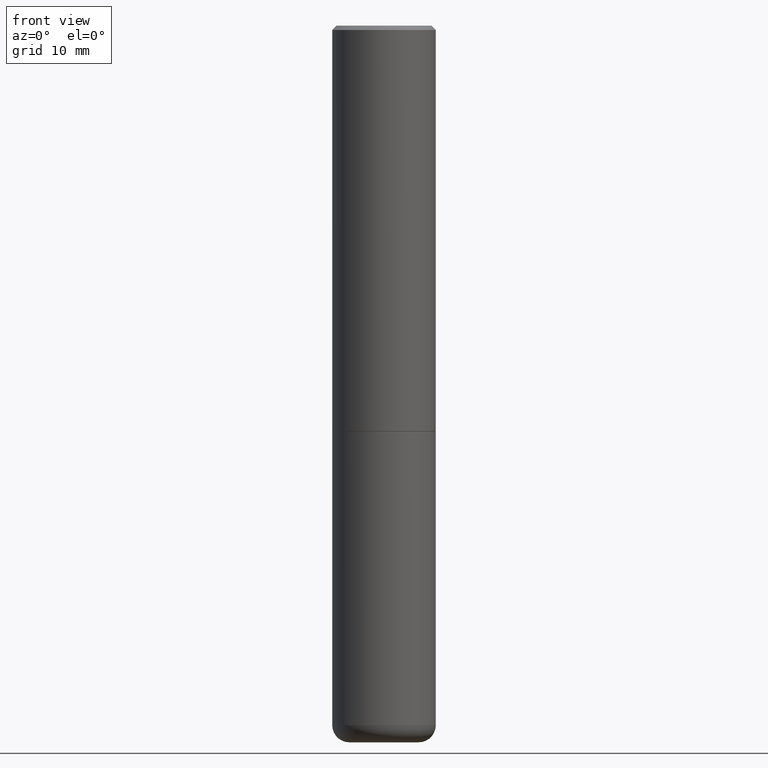
[diagram: clean part render]
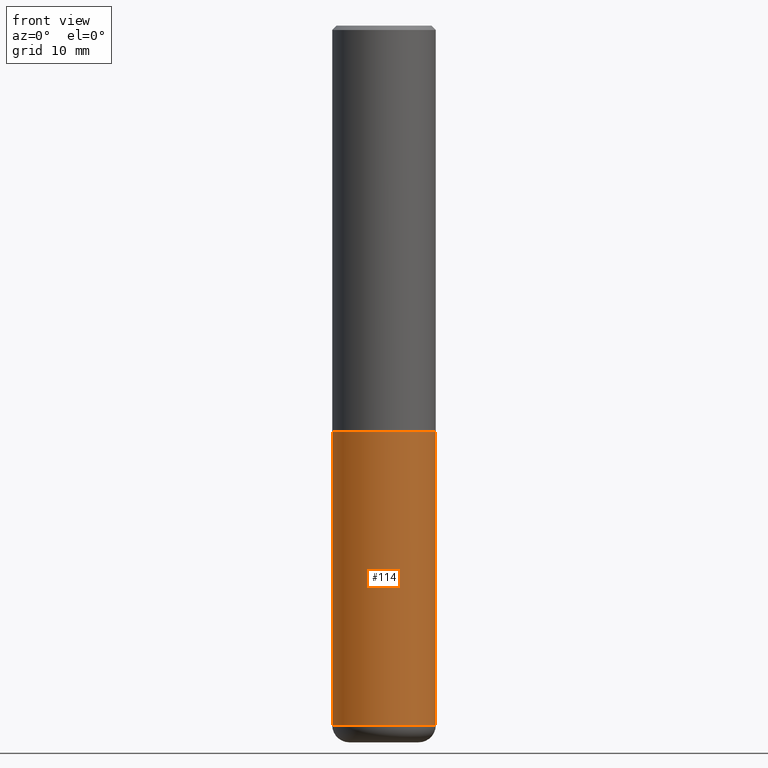
[diagram: same view with one face highlighted and labeled with its STEP entity id]
A machine part, front view. The second image highlights one B-rep face of the part: STEP entity #114.
In plain terms, the highlighted cylindrical surface (partial cylindrical patch) has radius 5.9995 mm, axis along (-0, 0, 1).
Its self-contained STEP definition (entity closure, byte-faithful):
#5 = DIRECTION ( 'NONE',  ( -2.445468806185136597E-29, 3.491481338843145583E-15, 1.000000000000000000 ) ) ;
#37 = CARTESIAN_POINT ( 'NONE',  ( 0.000000000000000000, 0.000000000000000000, 0.000000000000000000 ) ) ;
#60 = VERTEX_POINT ( 'NONE', #318 ) ;
#62 = VERTEX_POINT ( 'NONE', #221 ) ;
#65 = CYLINDRICAL_SURFACE ( 'NONE', #402, 0.2361999999999999933 ) ;
#78 = DIRECTION ( 'NONE',  ( -2.445468806185136597E-29, 3.491481338843145583E-15, 1.000000000000000000 ) ) ;
#102 = DIRECTION ( 'NONE',  ( -2.445468806185136877E-29, 3.491481338843145188E-15, 1.000000000000000000 ) ) ;
#107 = DIRECTION ( 'NONE',  ( -2.445468806185136877E-29, 3.491481338843145188E-15, 1.000000000000000000 ) ) ;
#109 = CARTESIAN_POINT ( 'NONE',  ( -0.2361999999999999655, -9.456032047705438285E-15, -3.189000000000000501 ) ) ;
#114 = ADVANCED_FACE ( 'NONE', ( #322 ), #65, .T. ) ;
#135 = CIRCLE ( 'NONE', #258, 0.2361999999999999933 ) ;
#143 = EDGE_CURVE ( 'NONE', #60, #62, #291, .T. ) ;
#151 = CIRCLE ( 'NONE', #379, 0.2361999999999999933 ) ;
#156 = DIRECTION ( 'NONE',  ( 1.000000000000000000, -6.982962677686266711E-15, 4.876176775795936353E-29 ) ) ;
#157 = ORIENTED_EDGE ( 'NONE', *, *, #143, .T. ) ;
#167 = DIRECTION ( 'NONE',  ( 1.000000000000000000, -6.982962677686265133E-15, 0.000000000000000000 ) ) ;
#180 = VERTEX_POINT ( 'NONE', #109 ) ;
#184 = ORIENTED_EDGE ( 'NONE', *, *, #190, .F. ) ;
#190 = EDGE_CURVE ( 'NONE', #212, #62, #151, .T. ) ;
#212 = VERTEX_POINT ( 'NONE', #296 ) ;
#221 = CARTESIAN_POINT ( 'NONE',  ( 0.2361999999999999933, -8.110012853864854101E-15, -1.850400000000000267 ) ) ;
#239 = EDGE_LOOP ( 'NONE', ( #316, #346, #157, #184 ) ) ;
#258 = AXIS2_PLACEMENT_3D ( 'NONE', #403, #336, #167 ) ;
#265 = VECTOR ( 'NONE', #102, 39.37007874015748143 ) ;
#291 = LINE ( 'NONE', #319, #370 ) ;
#296 = CARTESIAN_POINT ( 'NONE',  ( -0.2361999999999999933, -7.119183587617718156E-15, -1.850400000000000267 ) ) ;
#316 = ORIENTED_EDGE ( 'NONE', *, *, #387, .F. ) ;
#318 = CARTESIAN_POINT ( 'NONE',  ( 0.2361999999999999655, -1.278370977404028805E-14, -3.189000000000000501 ) ) ;
#319 = CARTESIAN_POINT ( 'NONE',  ( 0.2361999999999999933, -1.649375784469496131E-15, 1.151752954443000088E-29 ) ) ;
#322 = FACE_OUTER_BOUND ( 'NONE', #239, .T. ) ;
#329 = LINE ( 'NONE', #332, #265 ) ;
#332 = CARTESIAN_POINT ( 'NONE',  ( -0.2361999999999999933, 1.678301941865356591E-15, -1.161852468318208757E-29 ) ) ;
#336 = DIRECTION ( 'NONE',  ( -2.445468806185136597E-29, 3.491481338843145583E-15, 1.000000000000000000 ) ) ;
#346 = ORIENTED_EDGE ( 'NONE', *, *, #404, .T. ) ;
#366 = DIRECTION ( 'NONE',  ( 1.000000000000000000, -6.982962677686269077E-15, 0.000000000000000000 ) ) ;
#370 = VECTOR ( 'NONE', #107, 39.37007874015748143 ) ;
#379 = AXIS2_PLACEMENT_3D ( 'NONE', #401, #78, #366 ) ;
#387 = EDGE_CURVE ( 'NONE', #180, #212, #329, .T. ) ;
#401 = CARTESIAN_POINT ( 'NONE',  ( 4.525095478964977394E-29, -6.460637069395357576E-15, -1.850400000000000267 ) ) ;
#402 = AXIS2_PLACEMENT_3D ( 'NONE', #37, #5, #156 ) ;
#403 = CARTESIAN_POINT ( 'NONE',  ( 7.798600022924401307E-29, -1.113433398957079310E-14, -3.189000000000000501 ) ) ;
#404 = EDGE_CURVE ( 'NONE', #180, #60, #135, .T. ) ;